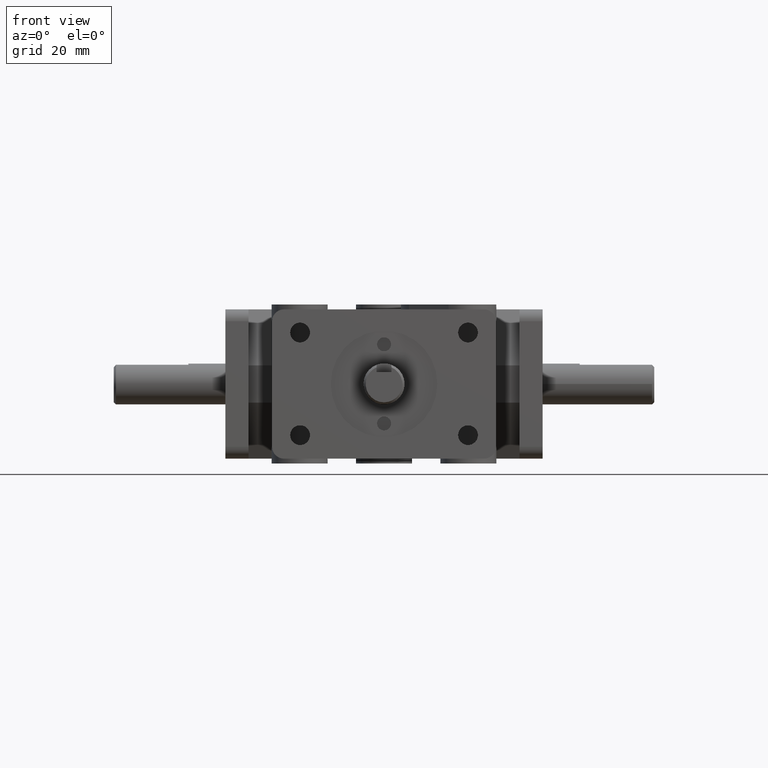
[diagram: clean part render]
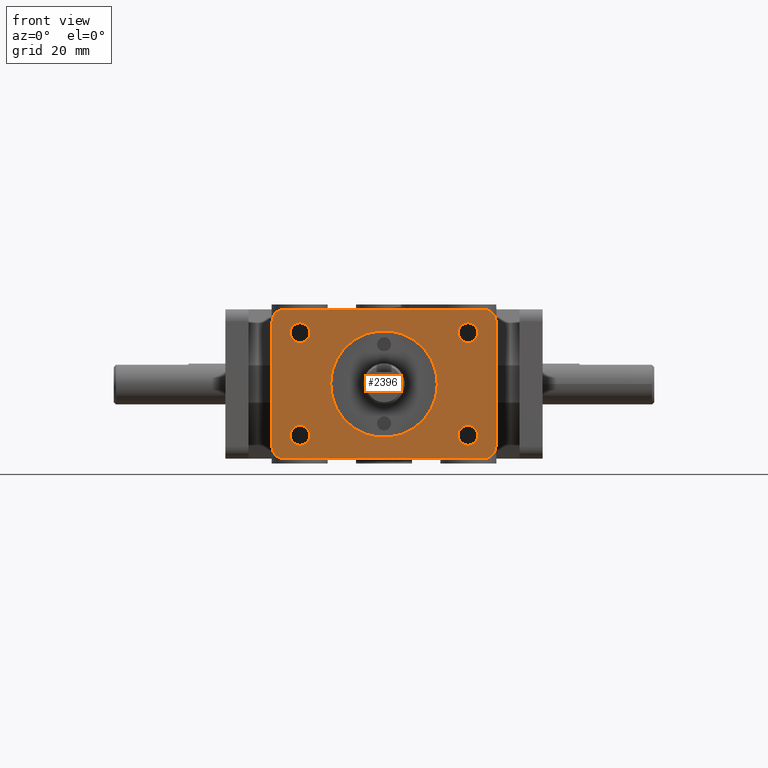
[diagram: same view with one face highlighted and labeled with its STEP entity id]
A machine part, front view. The second image highlights one B-rep face of the part: STEP entity #2396.
In plain terms, the highlighted planar face has unit normal (0, -1, 0).
Its self-contained STEP definition (entity closure, byte-faithful):
#54=FACE_BOUND('',#446,.T.);
#55=FACE_BOUND('',#447,.T.);
#56=FACE_BOUND('',#448,.T.);
#57=FACE_BOUND('',#449,.T.);
#58=FACE_BOUND('',#450,.T.);
#148=PLANE('',#2645);
#277=FACE_OUTER_BOUND('',#445,.T.);
#445=EDGE_LOOP('',(#2208,#2209,#2210,#2211,#2212,#2213,#2214,#2215));
#446=EDGE_LOOP('',(#2216));
#447=EDGE_LOOP('',(#2217));
#448=EDGE_LOOP('',(#2218));
#449=EDGE_LOOP('',(#2219));
#450=EDGE_LOOP('',(#2220));
#542=LINE('',#3697,#764);
#579=LINE('',#3786,#801);
#672=LINE('',#4034,#894);
#673=LINE('',#4036,#895);
#764=VECTOR('',#2981,1.);
#801=VECTOR('',#3048,1.);
#894=VECTOR('',#3335,1.);
#895=VECTOR('',#3338,1.);
#912=CIRCLE('',#2443,18.1356);
#929=CIRCLE('',#2485,4.064);
#931=CIRCLE('',#2488,4.064);
#933=CIRCLE('',#2491,4.064);
#935=CIRCLE('',#2494,4.064);
#981=CIRCLE('',#2570,3.3655);
#982=CIRCLE('',#2572,3.3655);
#983=CIRCLE('',#2574,3.3655);
#984=CIRCLE('',#2576,3.3655);
#1018=VERTEX_POINT('',#3397);
#1056=VERTEX_POINT('',#3529);
#1057=VERTEX_POINT('',#3530);
#1060=VERTEX_POINT('',#3538);
#1061=VERTEX_POINT('',#3539);
#1064=VERTEX_POINT('',#3547);
#1065=VERTEX_POINT('',#3548);
#1068=VERTEX_POINT('',#3556);
#1069=VERTEX_POINT('',#3557);
#1184=VERTEX_POINT('',#3852);
#1185=VERTEX_POINT('',#3856);
#1186=VERTEX_POINT('',#3860);
#1187=VERTEX_POINT('',#3864);
#1247=EDGE_CURVE('',#1018,#1018,#912,.T.);
#1304=EDGE_CURVE('',#1056,#1057,#929,.T.);
#1308=EDGE_CURVE('',#1060,#1061,#931,.T.);
#1312=EDGE_CURVE('',#1064,#1065,#933,.T.);
#1316=EDGE_CURVE('',#1068,#1069,#935,.T.);
#1384=EDGE_CURVE('',#1068,#1057,#542,.T.);
#1434=EDGE_CURVE('',#1060,#1065,#579,.T.);
#1466=EDGE_CURVE('',#1184,#1184,#981,.T.);
#1468=EDGE_CURVE('',#1185,#1185,#982,.T.);
#1470=EDGE_CURVE('',#1186,#1186,#983,.T.);
#1472=EDGE_CURVE('',#1187,#1187,#984,.T.);
#1555=EDGE_CURVE('',#1056,#1061,#672,.T.);
#1556=EDGE_CURVE('',#1069,#1064,#673,.T.);
#2208=ORIENTED_EDGE('',*,*,#1304,.F.);
#2209=ORIENTED_EDGE('',*,*,#1555,.T.);
#2210=ORIENTED_EDGE('',*,*,#1308,.F.);
#2211=ORIENTED_EDGE('',*,*,#1434,.T.);
#2212=ORIENTED_EDGE('',*,*,#1312,.F.);
#2213=ORIENTED_EDGE('',*,*,#1556,.F.);
#2214=ORIENTED_EDGE('',*,*,#1316,.F.);
#2215=ORIENTED_EDGE('',*,*,#1384,.T.);
#2216=ORIENTED_EDGE('',*,*,#1466,.T.);
#2217=ORIENTED_EDGE('',*,*,#1468,.T.);
#2218=ORIENTED_EDGE('',*,*,#1470,.T.);
#2219=ORIENTED_EDGE('',*,*,#1472,.T.);
#2220=ORIENTED_EDGE('',*,*,#1247,.T.);
#2396=ADVANCED_FACE('',(#277,#54,#55,#56,#57,#58),#148,.T.);
#2443=AXIS2_PLACEMENT_3D('',#3398,#2719,#2720);
#2485=AXIS2_PLACEMENT_3D('',#3531,#2837,#2838);
#2488=AXIS2_PLACEMENT_3D('',#3540,#2845,#2846);
#2491=AXIS2_PLACEMENT_3D('',#3549,#2853,#2854);
#2494=AXIS2_PLACEMENT_3D('',#3558,#2861,#2862);
#2570=AXIS2_PLACEMENT_3D('',#3853,#3117,#3118);
#2572=AXIS2_PLACEMENT_3D('',#3857,#3122,#3123);
#2574=AXIS2_PLACEMENT_3D('',#3861,#3127,#3128);
#2576=AXIS2_PLACEMENT_3D('',#3865,#3132,#3133);
#2645=AXIS2_PLACEMENT_3D('',#4035,#3336,#3337);
#2719=DIRECTION('center_axis',(0.,1.,0.));
#2720=DIRECTION('ref_axis',(1.,0.,0.));
#2837=DIRECTION('center_axis',(0.,1.,0.));
#2838=DIRECTION('ref_axis',(-0.707106781186548,0.,0.707106781186548));
#2845=DIRECTION('center_axis',(0.,1.,0.));
#2846=DIRECTION('ref_axis',(-0.707106781186548,0.,-0.707106781186548));
#2853=DIRECTION('center_axis',(0.,1.,0.));
#2854=DIRECTION('ref_axis',(0.707106781186548,0.,-0.707106781186548));
#2861=DIRECTION('center_axis',(0.,1.,0.));
#2862=DIRECTION('ref_axis',(0.707106781186548,0.,0.707106781186548));
#2981=DIRECTION('',(-1.,0.,0.));
#3048=DIRECTION('',(1.,0.,0.));
#3117=DIRECTION('center_axis',(0.,1.,0.));
#3118=DIRECTION('ref_axis',(1.,0.,0.));
#3122=DIRECTION('center_axis',(0.,1.,0.));
#3123=DIRECTION('ref_axis',(1.,0.,0.));
#3127=DIRECTION('center_axis',(0.,1.,0.));
#3128=DIRECTION('ref_axis',(1.,0.,0.));
#3132=DIRECTION('center_axis',(0.,1.,0.));
#3133=DIRECTION('ref_axis',(1.,0.,0.));
#3335=DIRECTION('',(0.,0.,-1.));
#3336=DIRECTION('center_axis',(0.,-1.,0.));
#3337=DIRECTION('ref_axis',(0.,0.,1.));
#3338=DIRECTION('',(0.,0.,-1.));
#3397=CARTESIAN_POINT('',(-18.1356,-1.40998324127395E-15,2.22097044906167E-15));
#3398=CARTESIAN_POINT('Origin',(0.,-1.40998324127395E-15,0.));
#3529=CARTESIAN_POINT('',(-38.1,-1.40998324127395E-15,21.336));
#3530=CARTESIAN_POINT('',(-34.036,0.,25.4));
#3531=CARTESIAN_POINT('Origin',(-34.036,0.,21.336));
#3538=CARTESIAN_POINT('',(-34.036,0.,-25.4));
#3539=CARTESIAN_POINT('',(-38.1,-1.40998324127395E-15,-21.336));
#3540=CARTESIAN_POINT('Origin',(-34.036,0.,-21.336));
#3547=CARTESIAN_POINT('',(38.1,0.,-21.336));
#3548=CARTESIAN_POINT('',(34.036,0.,-25.4));
#3549=CARTESIAN_POINT('Origin',(34.036,0.,-21.336));
#3556=CARTESIAN_POINT('',(34.036,0.,25.4));
#3557=CARTESIAN_POINT('',(38.1,0.,21.336));
#3558=CARTESIAN_POINT('Origin',(34.036,0.,21.336));
#3697=CARTESIAN_POINT('',(-38.1,0.,25.4));
#3786=CARTESIAN_POINT('',(-38.1,0.,-25.4));
#3852=CARTESIAN_POINT('',(25.2095,-1.40998324127395E-15,17.4625));
#3853=CARTESIAN_POINT('Origin',(28.575,-1.40998324127395E-15,17.4625));
#3856=CARTESIAN_POINT('',(25.2095,-1.40998324127395E-15,-17.4625));
#3857=CARTESIAN_POINT('Origin',(28.575,-1.40998324127395E-15,-17.4625));
#3860=CARTESIAN_POINT('',(-31.9405,-1.40998324127395E-15,-17.4625));
#3861=CARTESIAN_POINT('Origin',(-28.575,-1.40998324127395E-15,-17.4625));
#3864=CARTESIAN_POINT('',(-31.9405,-1.40998324127395E-15,17.4625));
#3865=CARTESIAN_POINT('Origin',(-28.575,-1.40998324127395E-15,17.4625));
#4034=CARTESIAN_POINT('',(-38.1,-1.40998324127395E-15,0.));
#4035=CARTESIAN_POINT('Origin',(-38.1,-1.40998324127395E-15,0.));
#4036=CARTESIAN_POINT('',(38.1,0.,0.));